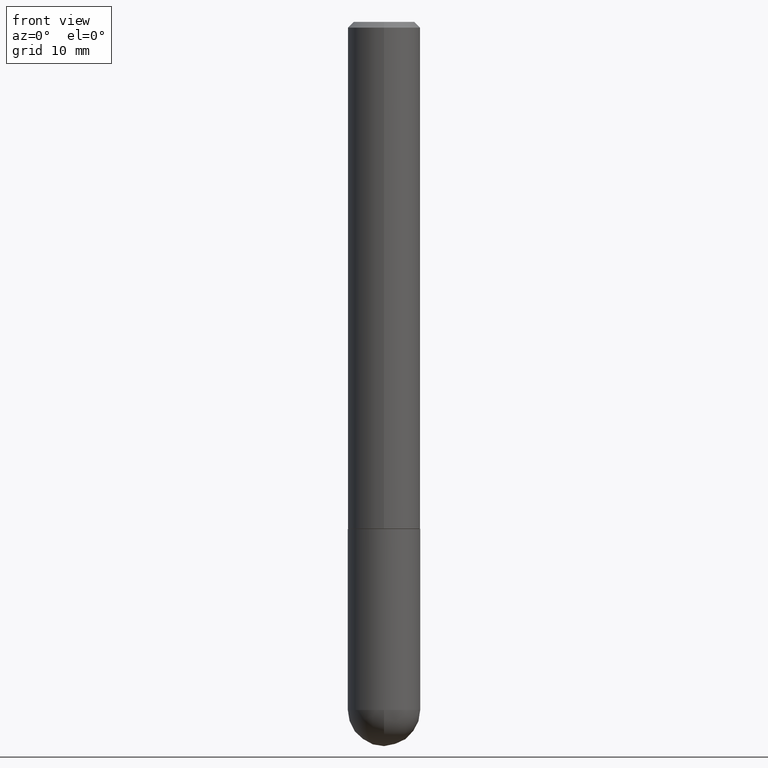
[diagram: clean part render]
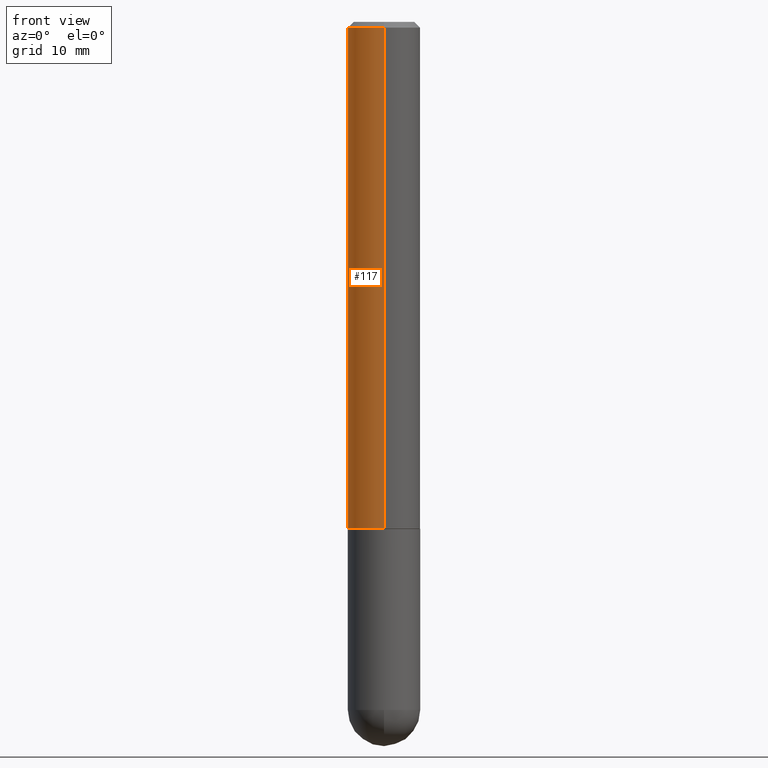
[diagram: same view with one face highlighted and labeled with its STEP entity id]
A machine part, front view. The second image highlights one B-rep face of the part: STEP entity #117.
In plain terms, the highlighted cylindrical surface (edge-blend (fillet) strip) has radius 3.175 mm, axis along (-0, 0, 1).
Its self-contained STEP definition (entity closure, byte-faithful):
#11 = CARTESIAN_POINT ( 'NONE',  ( 4.891412266665553962E-31, -6.982282945719821124E-17, -0.02000000000000002470 ) ) ;
#39 = DIRECTION ( 'NONE',  ( -6.982962677686265133E-15, -1.000000000000000000, 4.370956789862812472E-15 ) ) ;
#74 = CARTESIAN_POINT ( 'NONE',  ( 8.728703347107837333E-16, 0.1249999999999999306, -0.02000000000000046185 ) ) ;
#77 = ORIENTED_EDGE ( 'NONE', *, *, #199, .T. ) ;
#82 = EDGE_LOOP ( 'NONE', ( #310, #192, #77, #369 ) ) ;
#90 = FACE_OUTER_BOUND ( 'NONE', #82, .T. ) ;
#99 = VERTEX_POINT ( 'NONE', #409 ) ;
#108 = CARTESIAN_POINT ( 'NONE',  ( -8.728703347107841277E-16, -0.1250000000000001110, 4.363926841074887247E-16 ) ) ;
#117 = ADVANCED_FACE ( 'NONE', ( #90 ), #260, .T. ) ;
#147 = AXIS2_PLACEMENT_3D ( 'NONE', #270, #169, #391 ) ;
#169 = DIRECTION ( 'NONE',  ( -2.445706133332774021E-29, 3.491141472859906642E-15, 1.000000000000000000 ) ) ;
#177 = AXIS2_PLACEMENT_3D ( 'NONE', #203, #326, #39 ) ;
#185 = EDGE_CURVE ( 'NONE', #288, #99, #246, .T. ) ;
#192 = ORIENTED_EDGE ( 'NONE', *, *, #291, .T. ) ;
#199 = EDGE_CURVE ( 'NONE', #337, #99, #388, .T. ) ;
#203 = CARTESIAN_POINT ( 'NONE',  ( 4.277540027199021844E-29, -6.106006436031975850E-15, -1.749000000000000110 ) ) ;
#235 = AXIS2_PLACEMENT_3D ( 'NONE', #11, #305, #274 ) ;
#241 = CARTESIAN_POINT ( 'NONE',  ( 8.881784197001479121E-16, 0.1249999999999941019, -1.749000000000000554 ) ) ;
#246 = CIRCLE ( 'NONE', #235, 0.1250000000000000000 ) ;
#256 = VERTEX_POINT ( 'NONE', #241 ) ;
#260 = CYLINDRICAL_SURFACE ( 'NONE', #147, 0.1250000000000001110 ) ;
#270 = CARTESIAN_POINT ( 'NONE',  ( 0.000000000000000000, 0.000000000000000000, 0.000000000000000000 ) ) ;
#272 = CARTESIAN_POINT ( 'NONE',  ( 8.881784197001260212E-16, 0.1250000000000001110, -4.363926841074887247E-16 ) ) ;
#274 = DIRECTION ( 'NONE',  ( -6.982962677686265922E-15, -1.000000000000000000, 3.483106191921935554E-15 ) ) ;
#275 = CIRCLE ( 'NONE', #177, 0.1250000000000002498 ) ;
#276 = DIRECTION ( 'NONE',  ( -2.445706133332773740E-29, 3.491141472859906642E-15, 1.000000000000000000 ) ) ;
#281 = VECTOR ( 'NONE', #276, 39.37007874015748143 ) ;
#287 = EDGE_CURVE ( 'NONE', #256, #288, #357, .T. ) ;
#288 = VERTEX_POINT ( 'NONE', #74 ) ;
#291 = EDGE_CURVE ( 'NONE', #256, #337, #275, .T. ) ;
#305 = DIRECTION ( 'NONE',  ( -2.445706133332774021E-29, 3.491141472859906642E-15, 1.000000000000000000 ) ) ;
#310 = ORIENTED_EDGE ( 'NONE', *, *, #287, .F. ) ;
#326 = DIRECTION ( 'NONE',  ( -2.445706133332774021E-29, 3.491141472859906642E-15, 1.000000000000000000 ) ) ;
#337 = VERTEX_POINT ( 'NONE', #396 ) ;
#354 = VECTOR ( 'NONE', #389, 39.37007874015748143 ) ;
#357 = LINE ( 'NONE', #272, #281 ) ;
#369 = ORIENTED_EDGE ( 'NONE', *, *, #185, .F. ) ;
#388 = LINE ( 'NONE', #108, #354 ) ;
#389 = DIRECTION ( 'NONE',  ( -2.445706133332773740E-29, 3.491141472859906642E-15, 1.000000000000000000 ) ) ;
#391 = DIRECTION ( 'NONE',  ( -6.982962677686266711E-15, -1.000000000000000000, 3.491141472859906642E-15 ) ) ;
#396 = CARTESIAN_POINT ( 'NONE',  ( -8.728703347107421208E-16, -0.1250000000000063560, -1.748999999999999666 ) ) ;
#409 = CARTESIAN_POINT ( 'NONE',  ( -8.575622497214408537E-16, -0.1250000000000000555, -0.01999999999999959102 ) ) ;